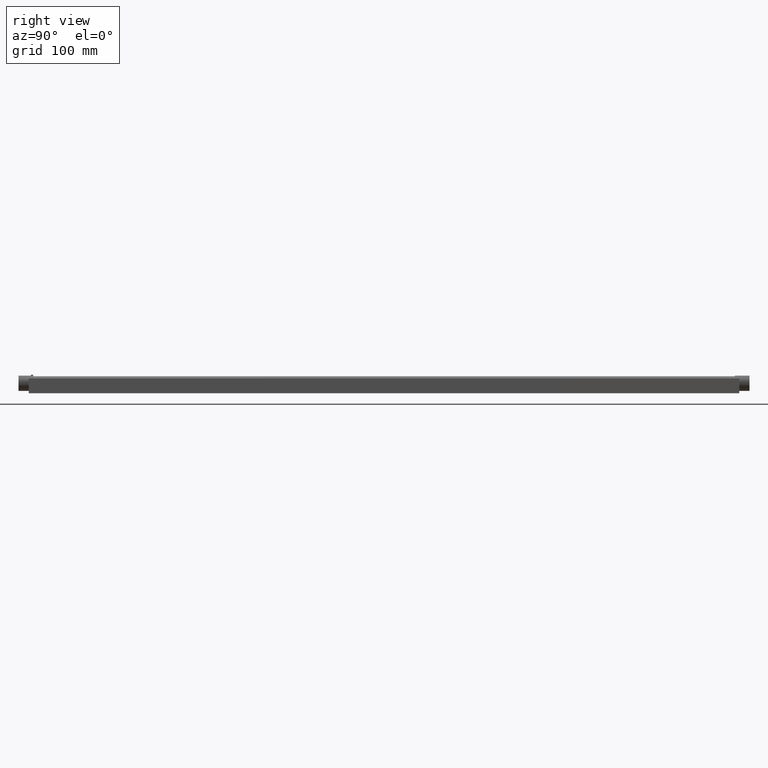
[diagram: clean part render]
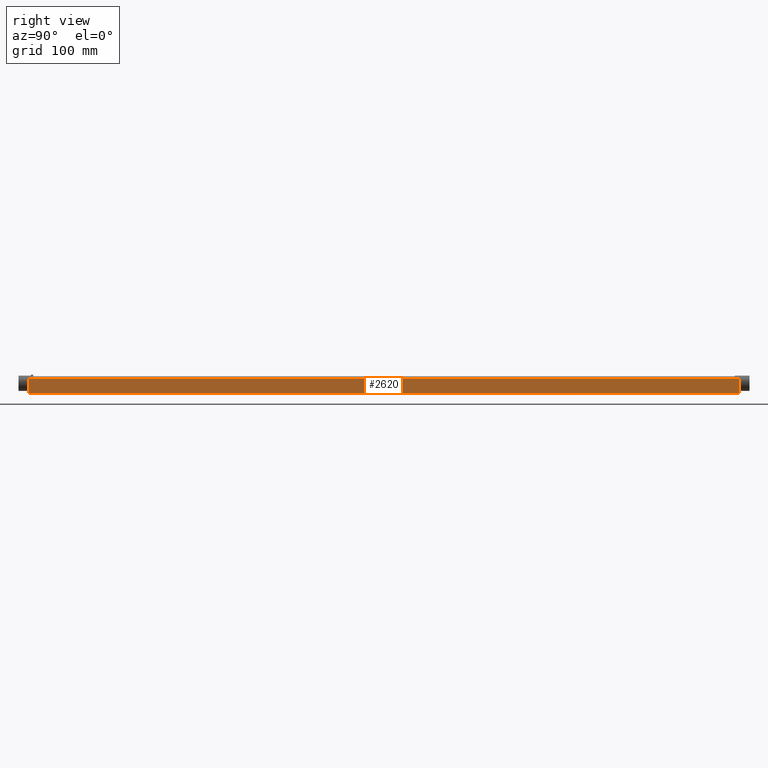
[diagram: same view with one face highlighted and labeled with its STEP entity id]
A machine part, right view. The second image highlights one B-rep face of the part: STEP entity #2620.
In plain terms, the highlighted planar face has unit normal (-1, 0, 0).
Its self-contained STEP definition (entity closure, byte-faithful):
#100=CARTESIAN_POINT('',(12.5,11.25,-22.));
#110=VERTEX_POINT('',#100);
#600=CARTESIAN_POINT('',(883.5,11.25,-22.));
#610=VERTEX_POINT('',#600);
#640=CARTESIAN_POINT('',(0.,11.25,-22.));
#650=DIRECTION('',(-1.,0.,0.));
#660=VECTOR('',#650,1.);
#670=LINE('',#640,#660);
#680=EDGE_CURVE('',#610,#110,#670,.T.);
#1630=CARTESIAN_POINT('',(12.5,11.25,-18.));
#1640=VERTEX_POINT('',#1630);
#1680=CARTESIAN_POINT('',(12.5,11.25,0.));
#1690=DIRECTION('',(0.,0.,-1.));
#1700=VECTOR('',#1690,1.);
#1710=LINE('',#1680,#1700);
#1720=EDGE_CURVE('',#1640,#110,#1710,.T.);
#2310=CARTESIAN_POINT('',(106.55,11.25,-20.8));
#2320=DIRECTION('',(0.,-1.,0.));
#2330=DIRECTION('',(0.,0.,-1.));
#2340=AXIS2_PLACEMENT_3D('',#2310,#2320,#2330);
#2350=PLANE('',#2340);
#2360=CARTESIAN_POINT('',(883.5,11.25,0.));
#2370=DIRECTION('',(0.,0.,-1.));
#2380=VECTOR('',#2370,1.);
#2390=LINE('',#2360,#2380);
#2400=CARTESIAN_POINT('',(883.5,11.2492250572074,-18.));
#2410=VERTEX_POINT('',#2400);
#2420=EDGE_CURVE('',#2410,#610,#2390,.T.);
#2430=ORIENTED_EDGE('',*,*,#2420,.T.);
#2440=CARTESIAN_POINT('',(883.5,11.25,-4.));
#2450=VERTEX_POINT('',#2440);
#2460=EDGE_CURVE('',#2450,#2410,#2390,.T.);
#2470=ORIENTED_EDGE('',*,*,#2460,.T.);
#2480=CARTESIAN_POINT('',(0.,11.25,-4.));
#2490=DIRECTION('',(-1.,0.,0.));
#2500=VECTOR('',#2490,1.);
#2510=LINE('',#2480,#2500);
#2520=CARTESIAN_POINT('',(12.5,11.25,-4.));
#2530=VERTEX_POINT('',#2520);
#2540=EDGE_CURVE('',#2450,#2530,#2510,.T.);
#2550=ORIENTED_EDGE('',*,*,#2540,.F.);
#2560=EDGE_CURVE('',#2530,#1640,#1710,.T.);
#2570=ORIENTED_EDGE('',*,*,#2560,.F.);
#2580=ORIENTED_EDGE('',*,*,#1720,.F.);
#2590=ORIENTED_EDGE('',*,*,#680,.T.);
#2600=EDGE_LOOP('',(#2590,#2580,#2570,#2550,#2470,#2430));
#2610=FACE_OUTER_BOUND('',#2600,.T.);
#2620=ADVANCED_FACE('',(#2610),#2350,.F.);